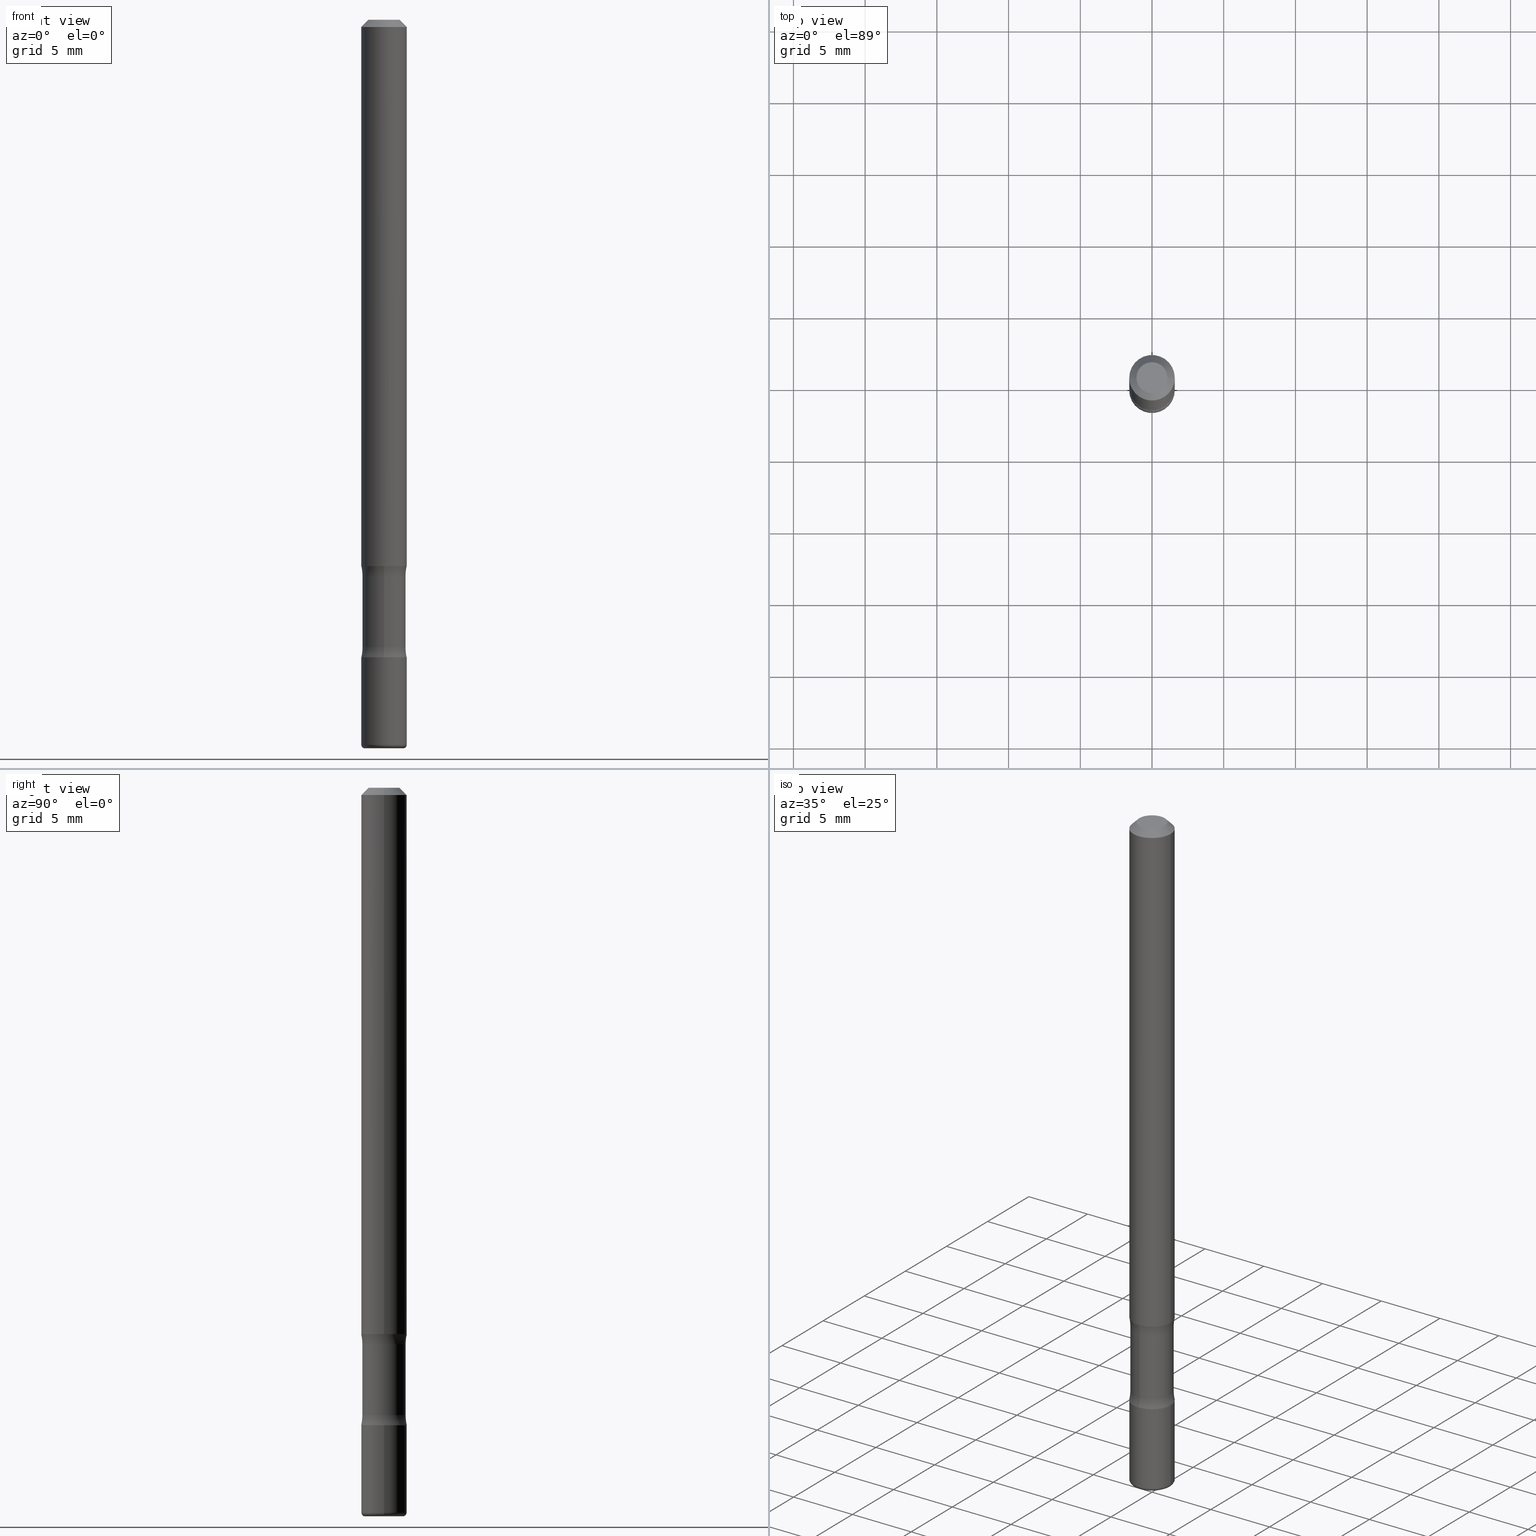
[diagram: canonical four-view strip — front | top / right | iso, engineering-drawing reading convention]
A machine part, canonical four-view strip (front | top / right | iso — engineering-drawing reading convention). The complete STEP part file that produces these views, byte-faithful:
ISO-10303-21;
HEADER;
FILE_DESCRIPTION (( 'STEP AP203' ),
    '1' );
FILE_NAME ('37993.STEP',
    '2024-03-02T02:11:24',
    ( '' ),
    ( '' ),
    'SwSTEP 2.0',
    'SolidWorks 2023',
    '' );
FILE_SCHEMA (( 'CONFIG_CONTROL_DESIGN' ));
ENDSEC;

DATA;
#1 = ORIENTED_EDGE ( 'NONE', *, *, #189, .F. ) ;
#2 = CYLINDRICAL_SURFACE ( 'NONE', #127, 0.05937499999999967110 ) ;
#3 = AXIS2_PLACEMENT_3D ( 'NONE', #549, #487, #408 ) ;
#4 = ORIENTED_EDGE ( 'NONE', *, *, #176, .T. ) ;
#5 = EDGE_CURVE ( 'NONE', #413, #120, #213, .T. ) ;
#6 = FACE_OUTER_BOUND ( 'NONE', #263, .T. ) ;
#7 = DIRECTION ( 'NONE',  ( 1.000000000000000000, -6.982962677686271444E-15, 0.000000000000000000 ) ) ;
#8 = APPROVAL ( #29, 'UNSPECIFIED' ) ;
#9 = VERTEX_POINT ( 'NONE', #488 ) ;
#10 = CARTESIAN_POINT ( 'NONE',  ( 4.364351673554390997E-16, 0.06249999999999455297, -1.749999999999999334 ) ) ;
#11 = ORIENTED_EDGE ( 'NONE', *, *, #108, .F. ) ;
#12 = APPLICATION_PROTOCOL_DEFINITION ( 'international standard', 'config_control_design', 1994, #34 ) ;
#13 = DIRECTION ( 'NONE',  ( 1.000000000000000000, -6.982962677686265922E-15, 4.876176775795935793E-29 ) ) ;
#14 = CARTESIAN_POINT ( 'NONE',  ( 4.866482924308417164E-29, -6.948047864297853205E-15, -1.989999999999998215 ) ) ;
#15 = ORIENTED_EDGE ( 'NONE', *, *, #158, .F. ) ;
#16 = AXIS2_PLACEMENT_3D ( 'NONE', #70, #321, #481 ) ;
#17 = ORIENTED_EDGE ( 'NONE', *, *, #445, .T. ) ;
#18 = DIRECTION ( 'NONE',  ( 6.982962677686266711E-15, 1.000000000000000000, -4.601007147224048087E-15 ) ) ;
#19 = EDGE_CURVE ( 'NONE', #377, #277, #415, .T. ) ;
#20 = PERSON_AND_ORGANIZATION ( #376, #326 ) ;
#21 = ADVANCED_FACE ( 'NONE', ( #350 ), #503, .T. ) ;
#22 = DIRECTION ( 'NONE',  ( 1.000000000000000000, -6.982962677686271444E-15, 4.883557194083114583E-29 ) ) ;
#23 = FACE_OUTER_BOUND ( 'NONE', #405, .T. ) ;
#24 = APPLICATION_PROTOCOL_DEFINITION ( 'international standard', 'config_control_design', 1994, #308 ) ;
#25 = AXIS2_PLACEMENT_3D ( 'NONE', #523, #472, #37 ) ;
#26 = EDGE_CURVE ( 'NONE', #184, #64, #272, .T. ) ;
#27 = CARTESIAN_POINT ( 'NONE',  ( -6.403209434462905426E-29, -2.140844110749520751E-14, -1.749999999999998890 ) ) ;
#28 = CARTESIAN_POINT ( 'NONE',  ( -4.287811248606822657E-16, -0.06250000000000677236, -1.749999999999998890 ) ) ;
#29 = APPROVAL_STATUS ( 'not_yet_approved' ) ;
#30 = ORIENTED_EDGE ( 'NONE', *, *, #218, .F. ) ;
#31 = CARTESIAN_POINT ( 'NONE',  ( 0.05250000000000046296, -7.349568218264821903E-15, -1.999999999999999334 ) ) ;
#32 = ORIENTED_EDGE ( 'NONE', *, *, #328, .T. ) ;
#33 = EDGE_CURVE ( 'NONE', #145, #418, #373, .T. ) ;
#34 = APPLICATION_CONTEXT ( 'configuration controlled 3d designs of mechanical parts and assemblies' ) ;
#35 = CARTESIAN_POINT ( 'NONE',  ( -4.287811248606790116E-16, -0.06250000000000452416, -1.499999999999998446 ) ) ;
#36 = AXIS2_PLACEMENT_3D ( 'NONE', #304, #539, #247 ) ;
#37 = DIRECTION ( 'NONE',  ( -6.982962677686265922E-15, -1.000000000000000000, 0.000000000000000000 ) ) ;
#38 = AXIS2_PLACEMENT_3D ( 'NONE', #461, #96, #152 ) ;
#39 = CYLINDRICAL_SURFACE ( 'NONE', #340, 0.05937499999999967110 ) ;
#40 = CARTESIAN_POINT ( 'NONE',  ( -0.06250000000000062450, -6.084980893786609222E-15, -1.749999999999999112 ) ) ;
#41 = CARTESIAN_POINT ( 'NONE',  ( 4.279570410823987363E-29, -6.110092342975501516E-15, -1.749999999999999112 ) ) ;
#42 = ADVANCED_FACE ( 'NONE', ( #63 ), #469, .F. ) ;
#43 = AXIS2_PLACEMENT_3D ( 'NONE', #496, #168, #485 ) ;
#44 = AXIS2_PLACEMENT_3D ( 'NONE', #347, #150, #219 ) ;
#45 = ORIENTED_EDGE ( 'NONE', *, *, #33, .T. ) ;
#46 = DIMENSIONAL_EXPONENTS ( 1.000000000000000000, 0.000000000000000000, 0.000000000000000000, 0.000000000000000000, 0.000000000000000000, 0.000000000000000000, 0.000000000000000000 ) ;
#47 = EDGE_CURVE ( 'NONE', #183, #258, #248, .T. ) ;
#48 = LINE ( 'NONE', #560, #492 ) ;
#49 = CARTESIAN_POINT ( 'NONE',  ( 4.279570410823987363E-29, -6.110092342975501516E-15, -1.749999999999999112 ) ) ;
#50 = ORIENTED_EDGE ( 'NONE', *, *, #497, .T. ) ;
#51 = ADVANCED_FACE ( 'NONE', ( #429 ), #151, .T. ) ;
#52 = ORIENTED_EDGE ( 'NONE', *, *, #489, .F. ) ;
#53 = CARTESIAN_POINT ( 'NONE',  ( -0.06250000000000056899, 3.666055405785322169E-16, -0.02000000000000013572 ) ) ;
#54 = DIRECTION ( 'NONE',  ( -2.445468806185136597E-29, 3.491481338843145583E-15, 1.000000000000000000 ) ) ;
#55 = VECTOR ( 'NONE', #125, 39.37007874015748143 ) ;
#56 = ORIENTED_EDGE ( 'NONE', *, *, #354, .F. ) ;
#57 = FACE_OUTER_BOUND ( 'NONE', #132, .T. ) ;
#58 = LENGTH_MEASURE_WITH_UNIT ( LENGTH_MEASURE( 0.02539999999999999897 ), #103 );
#59 = EDGE_CURVE ( 'NONE', #470, #258, #424, .T. ) ;
#60 = EDGE_LOOP ( 'NONE', ( #339, #288, #490, #454 ) ) ;
#61 = DIRECTION ( 'NONE',  ( 8.010757980930134339E-30, -5.846345719468729014E-15, -1.000000000000000000 ) ) ;
#62 = CARTESIAN_POINT ( 'NONE',  ( 3.668203209277701532E-29, -5.237222008264713444E-15, -1.499999999999998668 ) ) ;
#63 = FACE_OUTER_BOUND ( 'NONE', #92, .T. ) ;
#64 = VERTEX_POINT ( 'NONE', #10 ) ;
#65 = CARTESIAN_POINT ( 'NONE',  ( 4.259337010429733699E-29, -5.944818127683673811E-15, -1.722224392445884655 ) ) ;
#66 = CARTESIAN_POINT ( 'NONE',  ( 0.000000000000000000, 0.000000000000000000, 0.000000000000000000 ) ) ;
#67 = CIRCLE ( 'NONE', #207, 0.06250000000000090206 ) ;
#68 = COORDINATED_UNIVERSAL_TIME_OFFSET ( 5, 0, .BEHIND. ) ;
#69 = APPROVAL_PERSON_ORGANIZATION ( #114, #516, #252 ) ;
#70 = CARTESIAN_POINT ( 'NONE',  ( 4.890937612370306439E-31, -6.982962677686338448E-17, -0.02000000000000013572 ) ) ;
#71 = DIRECTION ( 'NONE',  ( 1.000000000000000000, 0.000000000000000000, 0.000000000000000000 ) ) ;
#72 = ADVANCED_FACE ( 'NONE', ( #194 ), #76, .F. ) ;
#73 = EDGE_CURVE ( 'NONE', #419, #145, #146, .T. ) ;
#74 = APPROVAL_DATE_TIME ( #171, #8 ) ;
#75 = CC_DESIGN_DATE_AND_TIME_ASSIGNMENT ( #250, #404, ( #113 ) ) ;
#76 = TOROIDAL_SURFACE ( 'NONE', #442, 0.1843749999999994560, 0.1250000000000000000 ) ;
#77 = PERSON_AND_ORGANIZATION_ROLE ( 'design_supplier' ) ;
#78 = CIRCLE ( 'NONE', #36, 0.01000000000000085022 ) ;
#79 = DIRECTION ( 'NONE',  ( 8.010757980930134339E-30, -5.846345719468729014E-15, -1.000000000000000000 ) ) ;
#80 = PERSON_AND_ORGANIZATION ( #376, #326 ) ;
#81 = ORIENTED_EDGE ( 'NONE', *, *, #397, .T. ) ;
#82 = DIRECTION ( 'NONE',  ( 1.000000000000000000, -6.860497997771530774E-15, 4.811960108362550720E-29 ) ) ;
#83 = CYLINDRICAL_SURFACE ( 'NONE', #118, 0.06250000000000073552 ) ;
#84 = CARTESIAN_POINT ( 'NONE',  ( 4.479839360347238409E-29, -7.571678772842681008E-15, -1.999999999999998446 ) ) ;
#85 = AXIS2_PLACEMENT_3D ( 'NONE', #65, #228, #265 ) ;
#86 = DIRECTION ( 'NONE',  ( -1.000000000000000000, 6.982962677686265922E-15, -4.876176775795935793E-29 ) ) ;
#87 = DIRECTION ( 'NONE',  ( 1.000000000000000000, -6.982962677686265922E-15, 4.876176775795935793E-29 ) ) ;
#88 = ORIENTED_EDGE ( 'NONE', *, *, #47, .T. ) ;
#89 = DIRECTION ( 'NONE',  ( 6.982962677686265922E-15, 1.000000000000000000, -5.846345719468729014E-15 ) ) ;
#90 = ORIENTED_EDGE ( 'NONE', *, *, #135, .F. ) ;
#91 = CIRCLE ( 'NONE', #221, 0.06250000000000062450 ) ;
#92 = EDGE_LOOP ( 'NONE', ( #505, #224 ) ) ;
#93 = DIRECTION ( 'NONE',  ( -6.982962677686265922E-15, -1.000000000000000000, 0.000000000000000000 ) ) ;
#94 = ORIENTED_EDGE ( 'NONE', *, *, #397, .F. ) ;
#95 = DIRECTION ( 'NONE',  ( -2.438088387897960049E-29, 3.491481338843145188E-15, 1.000000000000000000 ) ) ;
#96 = DIRECTION ( 'NONE',  ( 8.010757980930137142E-30, -5.846345719468729014E-15, -1.000000000000000000 ) ) ;
#97 = ORIENTED_EDGE ( 'NONE', *, *, #444, .T. ) ;
#98 = DIRECTION ( 'NONE',  ( 1.000000000000000000, -6.982962677686266711E-15, 4.876176775795936353E-29 ) ) ;
#99 = EDGE_CURVE ( 'NONE', #277, #418, #48, .T. ) ;
#100 = CLOSED_SHELL ( 'NONE', ( #303, #293, #254, #21, #51, #275 ) ) ;
#101 = AXIS2_PLACEMENT_3D ( 'NONE', #556, #180, #177 ) ;
#102 = ORIENTED_EDGE ( 'NONE', *, *, #59, .T. ) ;
#103 =( LENGTH_UNIT ( ) NAMED_UNIT ( * ) SI_UNIT ( $, .METRE. ) );
#104 = DIRECTION ( 'NONE',  ( -2.445468806185136597E-29, 3.491481338843145583E-15, 1.000000000000000000 ) ) ;
#105 = ADVANCED_FACE ( 'NONE', ( #165 ), #186, .F. ) ;
#106 = CARTESIAN_POINT ( 'NONE',  ( 4.079301461300732393E-29, -4.648505913108318079E-15, -1.499999999999998668 ) ) ;
#107 = DIRECTION ( 'NONE',  ( 6.982962677686265922E-15, 1.000000000000000000, -5.846345719468729014E-15 ) ) ;
#108 = EDGE_CURVE ( 'NONE', #466, #377, #519, .T. ) ;
#109 = DIRECTION ( 'NONE',  ( 8.010757980930134339E-30, -5.846345719468729014E-15, -1.000000000000000000 ) ) ;
#110 =( CONVERSION_BASED_UNIT ( 'INCH', #58 ) LENGTH_UNIT ( ) NAMED_UNIT ( #46 ) );
#111 = AXIS2_PLACEMENT_3D ( 'NONE', #244, #439, #22 ) ;
#112 = LOCAL_TIME ( 21, 11, 24.00000000000000000, #399 ) ;
#113 = SECURITY_CLASSIFICATION ( '', '', #208 ) ;
#114 = PERSON_AND_ORGANIZATION ( #376, #326 ) ;
#115 = CARTESIAN_POINT ( 'NONE',  ( 0.000000000000000000, 0.000000000000000000, 0.000000000000000000 ) ) ;
#116 = CALENDAR_DATE ( 2024, 1, 3 ) ;
#117 = EDGE_LOOP ( 'NONE', ( #223, #389, #267, #367 ) ) ;
#118 = AXIS2_PLACEMENT_3D ( 'NONE', #493, #299, #87 ) ;
#119 = APPROVAL_STATUS ( 'not_yet_approved' ) ;
#120 = VERTEX_POINT ( 'NONE', #286 ) ;
#121 = AXIS2_PLACEMENT_3D ( 'NONE', #346, #193, #423 ) ;
#122 = FACE_OUTER_BOUND ( 'NONE', #161, .T. ) ;
#123 = DIRECTION ( 'NONE',  ( -2.445468806185136597E-29, 3.491481338843145583E-15, 1.000000000000000000 ) ) ;
#124 = PERSON_AND_ORGANIZATION ( #376, #326 ) ;
#125 = DIRECTION ( 'NONE',  ( -2.445468806185136877E-29, 3.491481338843145188E-15, 1.000000000000000000 ) ) ;
#126 = CIRCLE ( 'NONE', #542, 0.05250000000000046296 ) ;
#127 = AXIS2_PLACEMENT_3D ( 'NONE', #343, #510, #18 ) ;
#128 = DIRECTION ( 'NONE',  ( 1.000000000000000000, -6.982962677686224112E-15, 0.000000000000000000 ) ) ;
#129 = ORIENTED_EDGE ( 'NONE', *, *, #108, .T. ) ;
#130 = ORIENTED_EDGE ( 'NONE', *, *, #175, .F. ) ;
#131 = ORIENTED_EDGE ( 'NONE', *, *, #210, .F. ) ;
#132 = EDGE_LOOP ( 'NONE', ( #4, #360, #362, #533 ) ) ;
#133 = LINE ( 'NONE', #296, #239 ) ;
#134 = MANIFOLD_SOLID_BREP ( 'Body-Move/Copy2[4]', #421 ) ;
#135 = EDGE_CURVE ( 'NONE', #120, #413, #284, .T. ) ;
#136 = AXIS2_PLACEMENT_3D ( 'NONE', #541, #173, #327 ) ;
#137 = CIRCLE ( 'NONE', #121, 0.06250000000000090206 ) ;
#138 = CC_DESIGN_SECURITY_CLASSIFICATION ( #113, ( #402 ) ) ;
#139 = ORIENTED_EDGE ( 'NONE', *, *, #384, .F. ) ;
#140 = CARTESIAN_POINT ( 'NONE',  ( 4.890937612370306439E-31, -6.982962677686338448E-17, -0.02000000000000013572 ) ) ;
#141 = ORIENTED_EDGE ( 'NONE', *, *, #135, .T. ) ;
#142 = DIRECTION ( 'NONE',  ( -0.7071067811865471286, 2.468850131082252722E-15, -0.7071067811865479058 ) ) ;
#143 = FACE_OUTER_BOUND ( 'NONE', #462, .T. ) ;
#144 = MANIFOLD_SOLID_BREP ( 'Body-Move/Copy2[2]', #504 ) ;
#145 = VERTEX_POINT ( 'NONE', #40 ) ;
#146 = LINE ( 'NONE', #256, #220 ) ;
#147 = CARTESIAN_POINT ( 'NONE',  ( -0.05250000000000046296, -6.556943197930007510E-15, -1.999999999999999334 ) ) ;
#148 = AXIS2_PLACEMENT_3D ( 'NONE', #553, #95, #13 ) ;
#149 = AXIS2_PLACEMENT_3D ( 'NONE', #500, #82, #163 ) ;
#150 = DIRECTION ( 'NONE',  ( -2.445468806185136597E-29, 3.491481338843145583E-15, 1.000000000000000000 ) ) ;
#151 = CYLINDRICAL_SURFACE ( 'NONE', #198, 0.06250000000000076328 ) ;
#152 = DIRECTION ( 'NONE',  ( 6.982962677686265922E-15, 1.000000000000000000, -5.846345719468729014E-15 ) ) ;
#153 = DIRECTION ( 'NONE',  ( 6.982962677686267499E-15, 1.000000000000000000, -4.370956789862777762E-15 ) ) ;
#154 = CARTESIAN_POINT ( 'NONE',  ( 0.04250000000000050265, -3.950909582714408367E-16, -5.549066237130292766E-17 ) ) ;
#155 = ADVANCED_FACE ( 'NONE', ( #122 ), #83, .T. ) ;
#156 = EDGE_LOOP ( 'NONE', ( #395, #499 ) ) ;
#157 = DATE_TIME_ROLE ( 'creation_date' ) ;
#158 = EDGE_CURVE ( 'NONE', #413, #258, #257, .T. ) ;
#159 = DIRECTION ( 'NONE',  ( 0.7071067811865471286, -7.319954787623254468E-15, -0.7071067811865479058 ) ) ;
#160 = APPROVAL ( #534, 'UNSPECIFIED' ) ;
#161 = EDGE_LOOP ( 'NONE', ( #483, #227, #558, #379 ) ) ;
#162 = TOROIDAL_SURFACE ( 'NONE', #111, 0.05250000000000046296, 0.01000000000000085022 ) ;
#163 = DIRECTION ( 'NONE',  ( 6.860497997771531562E-15, 1.000000000000000000, 0.000000000000000000 ) ) ;
#164 = CALENDAR_DATE ( 2024, 1, 3 ) ;
#165 = FACE_OUTER_BOUND ( 'NONE', #337, .T. ) ;
#166 = CARTESIAN_POINT ( 'NONE',  ( 4.890937612370306439E-31, -6.982962677686338448E-17, -0.02000000000000013572 ) ) ;
#167 = CALENDAR_DATE ( 2024, 1, 3 ) ;
#168 = DIRECTION ( 'NONE',  ( -2.445468806185136597E-29, 3.491481338843145583E-15, 1.000000000000000000 ) ) ;
#169 = DIRECTION ( 'NONE',  ( -6.982962677686265922E-15, -1.000000000000000000, 5.846345719468729014E-15 ) ) ;
#170 = AXIS2_PLACEMENT_3D ( 'NONE', #532, #522, #128 ) ;
#171 = DATE_AND_TIME ( #116, #447 ) ;
#172 = FACE_OUTER_BOUND ( 'NONE', #459, .T. ) ;
#173 = DIRECTION ( 'NONE',  ( -2.445468806185136597E-29, 3.491481338843145583E-15, 1.000000000000000000 ) ) ;
#174 = DIRECTION ( 'NONE',  ( 8.010757980930134339E-30, -5.846345719468729014E-15, -1.000000000000000000 ) ) ;
#175 = EDGE_CURVE ( 'NONE', #64, #344, #531, .T. ) ;
#176 = EDGE_CURVE ( 'NONE', #377, #466, #126, .T. ) ;
#177 = DIRECTION ( 'NONE',  ( 6.860497997771530774E-15, 1.000000000000000000, 0.000000000000000000 ) ) ;
#178 = VERTEX_POINT ( 'NONE', #214 ) ;
#179 = DIRECTION ( 'NONE',  ( 1.000000000000000000, -6.982962677686261977E-15, 0.000000000000000000 ) ) ;
#180 = DIRECTION ( 'NONE',  ( 1.000000000000000000, -6.860497997771530774E-15, 4.811960108362550720E-29 ) ) ;
#181 = AXIS2_PLACEMENT_3D ( 'NONE', #259, #515, #334 ) ;
#182 = CARTESIAN_POINT ( 'NONE',  ( 4.146134089876643393E-16, 0.05937499999999401590, -1.722224392445885544 ) ) ;
#183 = VERTEX_POINT ( 'NONE', #544 ) ;
#184 = VERTEX_POINT ( 'NONE', #28 ) ;
#185 = CARTESIAN_POINT ( 'NONE',  ( 4.146134089876587187E-16, 0.05937499999999455713, -1.527775607554112458 ) ) ;
#186 = TOROIDAL_SURFACE ( 'NONE', #475, 0.1843749999999999278, 0.1249999999999999584 ) ;
#187 = AXIS2_PLACEMENT_3D ( 'NONE', #115, #206, #486 ) ;
#188 = VECTOR ( 'NONE', #142, 39.37007874015748143 ) ;
#189 = EDGE_CURVE ( 'NONE', #420, #344, #133, .T. ) ;
#190 = EDGE_LOOP ( 'NONE', ( #141, #260 ) ) ;
#191 = DIRECTION ( 'NONE',  ( 8.010757980930134339E-30, -5.846345719468729014E-15, -1.000000000000000000 ) ) ;
#192 = EDGE_LOOP ( 'NONE', ( #311, #129, #301, #131 ) ) ;
#193 = DIRECTION ( 'NONE',  ( -2.445468806185136597E-29, 3.491481338843145583E-15, 1.000000000000000000 ) ) ;
#194 = FACE_OUTER_BOUND ( 'NONE', #117, .T. ) ;
#195 = DIRECTION ( 'NONE',  ( 8.010757980930134339E-30, -5.846345719468729014E-15, -1.000000000000000000 ) ) ;
#196 = EDGE_LOOP ( 'NONE', ( #295, #314, #102, #438 ) ) ;
#197 = CARTESIAN_POINT ( 'NONE',  ( 4.101551828289662394E-29, -4.810891717437951800E-15, -1.527775607554112014 ) ) ;
#198 = AXIS2_PLACEMENT_3D ( 'NONE', #66, #54, #98 ) ;
#199 = CIRCLE ( 'NONE', #484, 0.05937499999999937272 ) ;
#200 =( NAMED_UNIT ( * ) PLANE_ANGLE_UNIT ( ) SI_UNIT ( $, .RADIAN. ) );
#201 = COORDINATED_UNIVERSAL_TIME_OFFSET ( 5, 0, .BEHIND. ) ;
#202 = CYLINDRICAL_SURFACE ( 'NONE', #187, 0.06250000000000076328 ) ;
#203 = EDGE_LOOP ( 'NONE', ( #333, #11 ) ) ;
#204 = PRODUCT ( '37993', '37993', '', ( #529 ) ) ;
#205 = CARTESIAN_POINT ( 'NONE',  ( 4.890937612370272073E-29, -6.982962677686288799E-15, -1.999999999999999334 ) ) ;
#206 = DIRECTION ( 'NONE',  ( -2.445468806185136597E-29, 3.491481338843145583E-15, 1.000000000000000000 ) ) ;
#207 = AXIS2_PLACEMENT_3D ( 'NONE', #14, #498, #451 ) ;
#208 = SECURITY_CLASSIFICATION_LEVEL ( 'unclassified' ) ;
#209 = COORDINATED_UNIVERSAL_TIME_OFFSET ( 5, 0, .BEHIND. ) ;
#210 = EDGE_CURVE ( 'NONE', #419, #277, #520, .T. ) ;
#211 = DIRECTION ( 'NONE',  ( 8.010757980930134339E-30, -5.846345719468729014E-15, -1.000000000000000000 ) ) ;
#212 = CALENDAR_DATE ( 2024, 1, 3 ) ;
#213 = CIRCLE ( 'NONE', #136, 0.04250000000000050265 ) ;
#214 = CARTESIAN_POINT ( 'NONE',  ( -0.06250000000000090206, -2.209436607670712344E-15, -1.499999999999998668 ) ) ;
#215 = CIRCLE ( 'NONE', #410, 0.05937499999999996253 ) ;
#216 = APPROVAL_PERSON_ORGANIZATION ( #80, #160, #243 ) ;
#217 = PLANE ( 'NONE',  #3 ) ;
#218 = EDGE_CURVE ( 'NONE', #420, #271, #369, .T. ) ;
#219 = DIRECTION ( 'NONE',  ( 1.000000000000000000, -6.982962677686265922E-15, 4.876176775795935793E-29 ) ) ;
#220 = VECTOR ( 'NONE', #458, 39.37007874015748143 ) ;
#221 = AXIS2_PLACEMENT_3D ( 'NONE', #49, #291, #414 ) ;
#222 = ORIENTED_EDGE ( 'NONE', *, *, #557, .F. ) ;
#223 = ORIENTED_EDGE ( 'NONE', *, *, #363, .F. ) ;
#224 = ORIENTED_EDGE ( 'NONE', *, *, #431, .F. ) ;
#225 = ADVANCED_FACE ( 'NONE', ( #357 ), #217, .F. ) ;
#226 = ORIENTED_EDGE ( 'NONE', *, *, #175, .T. ) ;
#227 = ORIENTED_EDGE ( 'NONE', *, *, #279, .T. ) ;
#228 = DIRECTION ( 'NONE',  ( 8.010757980930134339E-30, -5.846345719468729014E-15, -1.000000000000000000 ) ) ;
#229 = AXIS2_PLACEMENT_3D ( 'NONE', #298, #457, #93 ) ;
#230 = VERTEX_POINT ( 'NONE', #35 ) ;
#231 = EDGE_CURVE ( 'NONE', #466, #419, #78, .T. ) ;
#232 = DIRECTION ( 'NONE',  ( 6.982962677686266711E-15, 1.000000000000000000, -4.601007147224070964E-15 ) ) ;
#233 = CARTESIAN_POINT ( 'NONE',  ( 0.06250000000000073552, -4.364351673553967477E-16, 3.047610484872495604E-30 ) ) ;
#234 = ORIENTED_EDGE ( 'NONE', *, *, #33, .F. ) ;
#235 = FACE_OUTER_BOUND ( 'NONE', #309, .T. ) ;
#236 = DIRECTION ( 'NONE',  ( -2.445468806185136597E-29, 3.491481338843145583E-15, 1.000000000000000000 ) ) ;
#237 = AXIS2_PLACEMENT_3D ( 'NONE', #268, #507, #266 ) ;
#238 = ADVANCED_FACE ( 'NONE', ( #537 ), #39, .T. ) ;
#239 = VECTOR ( 'NONE', #345, 39.37007874015748143 ) ;
#240 = PERSON_AND_ORGANIZATION_ROLE ( 'creator' ) ;
#241 = FACE_OUTER_BOUND ( 'NONE', #60, .T. ) ;
#242 = FACE_OUTER_BOUND ( 'NONE', #292, .T. ) ;
#243 = APPROVAL_ROLE ( '' ) ;
#244 = CARTESIAN_POINT ( 'NONE',  ( 4.866482924308417164E-29, -6.948047864297853205E-15, -1.989999999999998215 ) ) ;
#245 = EDGE_CURVE ( 'NONE', #418, #145, #91, .T. ) ;
#246 = PERSON_AND_ORGANIZATION_ROLE ( 'creator' ) ;
#247 = DIRECTION ( 'NONE',  ( -1.000000000000000000, 7.105427357601001859E-15, 0.000000000000000000 ) ) ;
#248 = CIRCLE ( 'NONE', #237, 0.06250000000000056899 ) ;
#249 = AXIS2_PLACEMENT_3D ( 'NONE', #62, #426, #463 ) ;
#250 = DATE_AND_TIME ( #164, #112 ) ;
#251 = CC_DESIGN_PERSON_AND_ORGANIZATION_ASSIGNMENT ( #20, #278, ( #113 ) ) ;
#252 = APPROVAL_ROLE ( '' ) ;
#253 = FACE_OUTER_BOUND ( 'NONE', #156, .T. ) ;
#254 = ADVANCED_FACE ( 'NONE', ( #338 ), #502, .T. ) ;
#255 = CIRCLE ( 'NONE', #101, 0.1250000000000000000 ) ;
#256 = CARTESIAN_POINT ( 'NONE',  ( -0.06250000000000076328, 4.440892098500680396E-16, -3.074334431409353598E-30 ) ) ;
#257 = LINE ( 'NONE', #512, #351 ) ;
#258 = VERTEX_POINT ( 'NONE', #316 ) ;
#259 = CARTESIAN_POINT ( 'NONE',  ( 4.866482924308417164E-29, -6.948047864297853205E-15, -1.989999999999998215 ) ) ;
#260 = ORIENTED_EDGE ( 'NONE', *, *, #5, .T. ) ;
#261 = CIRCLE ( 'NONE', #325, 0.06249999999999997224 ) ;
#262 = VERTEX_POINT ( 'NONE', #474 ) ;
#263 = EDGE_LOOP ( 'NONE', ( #94, #52, #226, #32 ) ) ;
#264 = ORIENTED_EDGE ( 'NONE', *, *, #328, .F. ) ;
#265 = DIRECTION ( 'NONE',  ( 6.982962677686265922E-15, 1.000000000000000000, -5.846345719468729014E-15 ) ) ;
#266 = DIRECTION ( 'NONE',  ( 1.000000000000000000, -6.982962677686265922E-15, 0.000000000000000000 ) ) ;
#267 = ORIENTED_EDGE ( 'NONE', *, *, #218, .T. ) ;
#268 = CARTESIAN_POINT ( 'NONE',  ( 4.890937612370306439E-31, -6.982962677686338448E-17, -0.02000000000000013572 ) ) ;
#269 = CIRCLE ( 'NONE', #455, 0.06250000000000056899 ) ;
#270 = ORIENTED_EDGE ( 'NONE', *, *, #210, .T. ) ;
#271 = VERTEX_POINT ( 'NONE', #477 ) ;
#272 = CIRCLE ( 'NONE', #409, 0.06250000000000062450 ) ;
#273 = AXIS2_PLACEMENT_3D ( 'NONE', #365, #355, #394 ) ;
#274 = CC_DESIGN_APPROVAL ( #516, ( #113 ) ) ;
#275 = ADVANCED_FACE ( 'NONE', ( #23 ), #319, .F. ) ;
#276 = ADVANCED_BREP_SHAPE_REPRESENTATION ( '37993', ( #494, #144, #134, #332 ), #555 ) ;
#277 = VERTEX_POINT ( 'NONE', #411 ) ;
#278 = PERSON_AND_ORGANIZATION_ROLE ( 'classification_officer' ) ;
#279 = EDGE_CURVE ( 'NONE', #178, #183, #526, .T. ) ;
#280 = PERSON_AND_ORGANIZATION ( #376, #326 ) ;
#281 = DIRECTION ( 'NONE',  ( 2.445468806185136597E-29, -3.491481338843145583E-15, -1.000000000000000000 ) ) ;
#282 = CARTESIAN_POINT ( 'NONE',  ( -0.06250000000000073552, 4.440892098500678424E-16, -3.074334431409351847E-30 ) ) ;
#283 = PRODUCT_RELATED_PRODUCT_CATEGORY ( 'detail', '', ( #204 ) ) ;
#284 = CIRCLE ( 'NONE', #43, 0.04250000000000050265 ) ;
#285 = AXIS2_PLACEMENT_3D ( 'NONE', #106, #195, #392 ) ;
#286 = CARTESIAN_POINT ( 'NONE',  ( -0.04250000000000050265, 3.316907271901009129E-16, -5.549066237130754373E-17 ) ) ;
#287 = LOCAL_TIME ( 21, 11, 24.00000000000000000, #482 ) ;
#288 = ORIENTED_EDGE ( 'NONE', *, *, #73, .T. ) ;
#289 = ADVANCED_FACE ( 'NONE', ( #242 ), #358, .F. ) ;
#290 = APPROVAL_PERSON_ORGANIZATION ( #366, #8, #540 ) ;
#291 = DIRECTION ( 'NONE',  ( -2.445468806185136597E-29, 3.491481338843145583E-15, 1.000000000000000000 ) ) ;
#292 = EDGE_LOOP ( 'NONE', ( #56, #330, #513, #30 ) ) ;
#293 = ADVANCED_FACE ( 'NONE', ( #57 ), #162, .T. ) ;
#294 = EDGE_LOOP ( 'NONE', ( #385, #270, #435, #234 ) ) ;
#295 = ORIENTED_EDGE ( 'NONE', *, *, #279, .F. ) ;
#296 = CARTESIAN_POINT ( 'NONE',  ( 4.146134089876645858E-16, 0.05937499999999210076, -1.999999999999998668 ) ) ;
#297 = CONICAL_SURFACE ( 'NONE', #401, 0.06250000000000056899, 0.7853981633974477239 ) ;
#298 = CARTESIAN_POINT ( 'NONE',  ( 1.287483743698442698E-15, 0.1843749999999946820, -1.527775607554112680 ) ) ;
#299 = DIRECTION ( 'NONE',  ( -2.445468806185136597E-29, 3.491481338843145583E-15, 1.000000000000000000 ) ) ;
#300 = ADVANCED_FACE ( 'NONE', ( #172 ), #297, .T. ) ;
#301 = ORIENTED_EDGE ( 'NONE', *, *, #19, .T. ) ;
#302 = DIRECTION ( 'NONE',  ( 8.010757980930134339E-30, -5.846345719468729014E-15, -1.000000000000000000 ) ) ;
#303 = ADVANCED_FACE ( 'NONE', ( #241 ), #202, .T. ) ;
#304 = CARTESIAN_POINT ( 'NONE',  ( -0.05250000000000046296, -6.575012928023797515E-15, -1.989999999999998215 ) ) ;
#305 = ORIENTED_EDGE ( 'NONE', *, *, #444, .F. ) ;
#306 = DIRECTION ( 'NONE',  ( 8.010757980930134339E-30, -5.846345719468729014E-15, -1.000000000000000000 ) ) ;
#307 = CARTESIAN_POINT ( 'NONE',  ( 4.279570410823986242E-29, -6.110092342975502304E-15, -1.749999999999999112 ) ) ;
#308 = APPLICATION_CONTEXT ( 'configuration controlled 3d designs of mechanical parts and assemblies' ) ;
#309 = EDGE_LOOP ( 'NONE', ( #222, #452, #509, #305 ) ) ;
#310 = CIRCLE ( 'NONE', #476, 0.05937499999999937272 ) ;
#311 = ORIENTED_EDGE ( 'NONE', *, *, #231, .F. ) ;
#312 = CARTESIAN_POINT ( 'NONE',  ( 0.06250000000000090206, -5.673657175620112213E-15, -1.499999999999998668 ) ) ;
#313 = CARTESIAN_POINT ( 'NONE',  ( 4.079301461300732393E-29, -4.648505913108318079E-15, -1.499999999999998668 ) ) ;
#314 = ORIENTED_EDGE ( 'NONE', *, *, #431, .T. ) ;
#315 = AXIS2_PLACEMENT_3D ( 'NONE', #403, #123, #406 ) ;
#316 = CARTESIAN_POINT ( 'NONE',  ( 0.06250000000000056899, -4.986107516375879651E-16, -0.02000000000000013572 ) ) ;
#317 = CIRCLE ( 'NONE', #285, 0.06249999999999997224 ) ;
#318 = CC_DESIGN_APPROVAL ( #160, ( #402 ) ) ;
#319 = PLANE ( 'NONE',  #331 ) ;
#320 = ADVANCED_FACE ( 'NONE', ( #527 ), #524, .F. ) ;
#321 = DIRECTION ( 'NONE',  ( 2.445468806185136597E-29, -3.491481338843145583E-15, -1.000000000000000000 ) ) ;
#322 = CARTESIAN_POINT ( 'NONE',  ( 4.117655442741518235E-29, -4.787830424982076550E-15, -1.527775607554111570 ) ) ;
#323 = DATE_AND_TIME ( #437, #506 ) ;
#324 = ADVANCED_FACE ( 'NONE', ( #143 ), #352, .T. ) ;
#325 = AXIS2_PLACEMENT_3D ( 'NONE', #313, #109, #471 ) ;
#326 = ORGANIZATION ( 'UNSPECIFIED', 'UNSPECIFIED', '' ) ;
#327 = DIRECTION ( 'NONE',  ( 1.000000000000000000, -6.982962677686266711E-15, 4.870577812114026993E-29 ) ) ;
#328 = EDGE_CURVE ( 'NONE', #344, #9, #215, .T. ) ;
#329 = DIRECTION ( 'NONE',  ( 6.982962677686266711E-15, 1.000000000000000000, -4.601007147224048087E-15 ) ) ;
#330 = ORIENTED_EDGE ( 'NONE', *, *, #363, .T. ) ;
#331 = AXIS2_PLACEMENT_3D ( 'NONE', #27, #535, #86 ) ;
#332 = AXIS2_PLACEMENT_3D ( 'NONE', #387, #468, #71 ) ;
#333 = ORIENTED_EDGE ( 'NONE', *, *, #176, .F. ) ;
#334 = DIRECTION ( 'NONE',  ( 1.000000000000000000, -6.982962677686270655E-15, 0.000000000000000000 ) ) ;
#335 = CC_DESIGN_DATE_AND_TIME_ASSIGNMENT ( #478, #157, ( #372 ) ) ;
#336 = EDGE_LOOP ( 'NONE', ( #450, #139 ) ) ;
#337 = EDGE_LOOP ( 'NONE', ( #342, #81, #97, #130 ) ) ;
#338 = FACE_OUTER_BOUND ( 'NONE', #203, .T. ) ;
#339 = ORIENTED_EDGE ( 'NONE', *, *, #391, .T. ) ;
#340 = AXIS2_PLACEMENT_3D ( 'NONE', #84, #371, #329 ) ;
#341 = DIRECTION ( 'NONE',  ( 6.982962677686265133E-15, 1.000000000000000000, -4.601007147224025211E-15 ) ) ;
#342 = ORIENTED_EDGE ( 'NONE', *, *, #26, .F. ) ;
#343 = CARTESIAN_POINT ( 'NONE',  ( 4.479839360347238409E-29, -7.571678772842681008E-15, -1.999999999999998446 ) ) ;
#344 = VERTEX_POINT ( 'NONE', #182 ) ;
#345 = DIRECTION ( 'NONE',  ( 8.010757980930134339E-30, -5.846345719468729014E-15, -1.000000000000000000 ) ) ;
#346 = CARTESIAN_POINT ( 'NONE',  ( 3.668203209277701532E-29, -5.237222008264713444E-15, -1.499999999999998668 ) ) ;
#347 = CARTESIAN_POINT ( 'NONE',  ( 0.000000000000000000, 0.000000000000000000, 0.000000000000000000 ) ) ;
#348 = ORIENTED_EDGE ( 'NONE', *, *, #5, .F. ) ;
#349 = DIRECTION ( 'NONE',  ( 1.000000000000000000, -6.982962677686265922E-15, 0.000000000000000000 ) ) ;
#350 = FACE_OUTER_BOUND ( 'NONE', #192, .T. ) ;
#351 = VECTOR ( 'NONE', #159, 39.37007874015748143 ) ;
#352 = CONICAL_SURFACE ( 'NONE', #16, 0.06250000000000056899, 0.7853981633974477239 ) ;
#353 = CARTESIAN_POINT ( 'NONE',  ( 4.279570410823986242E-29, -6.110092342975502304E-15, -1.749999999999999112 ) ) ;
#354 = EDGE_CURVE ( 'NONE', #262, #420, #310, .T. ) ;
#355 = DIRECTION ( 'NONE',  ( 2.438088387897960049E-29, -3.491481338843145188E-15, -1.000000000000000000 ) ) ;
#356 = ADVANCED_FACE ( 'NONE', ( #480 ), #380, .T. ) ;
#357 = FACE_OUTER_BOUND ( 'NONE', #190, .T. ) ;
#358 = TOROIDAL_SURFACE ( 'NONE', #374, 0.1843749999999994560, 0.1250000000000000000 ) ;
#359 = CC_DESIGN_APPROVAL ( #8, ( #372 ) ) ;
#360 = ORIENTED_EDGE ( 'NONE', *, *, #231, .T. ) ;
#361 = APPROVAL_DATE_TIME ( #323, #160 ) ;
#362 = ORIENTED_EDGE ( 'NONE', *, *, #391, .F. ) ;
#363 = EDGE_CURVE ( 'NONE', #262, #230, #255, .T. ) ;
#364 = SHAPE_DEFINITION_REPRESENTATION ( #491, #276 ) ;
#365 = CARTESIAN_POINT ( 'NONE',  ( -2.417785108228764368E-28, -4.861112258114085426E-14, -1.999999999999998890 ) ) ;
#366 = PERSON_AND_ORGANIZATION ( #376, #326 ) ;
#367 = ORIENTED_EDGE ( 'NONE', *, *, #511, .T. ) ;
#368 = CARTESIAN_POINT ( 'NONE',  ( -6.403209434462905426E-29, -2.140844110749520751E-14, -1.749999999999998890 ) ) ;
#369 = CIRCLE ( 'NONE', #229, 0.1250000000000000000 ) ;
#370 = LOCAL_TIME ( 21, 11, 24.00000000000000000, #201 ) ;
#371 = DIRECTION ( 'NONE',  ( 8.010757980930134339E-30, -5.846345719468729014E-15, -1.000000000000000000 ) ) ;
#372 = PRODUCT_DEFINITION ( 'UNKNOWN', '', #402, #538 ) ;
#373 = CIRCLE ( 'NONE', #453, 0.06250000000000062450 ) ;
#374 = AXIS2_PLACEMENT_3D ( 'NONE', #386, #61, #107 ) ;
#375 = CARTESIAN_POINT ( 'NONE',  ( 4.101551828289662394E-29, -4.810891717437951800E-15, -1.527775607554112014 ) ) ;
#376 = PERSON ( 'UNSPECIFIED', 'UNSPECIFIED', 'UNSPECIFIED', ('UNSPECIFIED'), ('UNSPECIFIED'), ('UNSPECIFIED') ) ;
#377 = VERTEX_POINT ( 'NONE', #31 ) ;
#378 = ADVANCED_FACE ( 'NONE', ( #253 ), #443, .F. ) ;
#379 = ORIENTED_EDGE ( 'NONE', *, *, #59, .F. ) ;
#380 = CYLINDRICAL_SURFACE ( 'NONE', #44, 0.06250000000000073552 ) ;
#381 = DIRECTION ( 'NONE',  ( 8.010757980930134339E-30, -5.846345719468729014E-15, -1.000000000000000000 ) ) ;
#382 = EDGE_LOOP ( 'NONE', ( #50, #430, #264, #1 ) ) ;
#383 = CIRCLE ( 'NONE', #495, 0.05937499999999996253 ) ;
#384 = EDGE_CURVE ( 'NONE', #230, #271, #317, .T. ) ;
#385 = ORIENTED_EDGE ( 'NONE', *, *, #73, .F. ) ;
#386 = CARTESIAN_POINT ( 'NONE',  ( 4.117655442741518235E-29, -4.787830424982076550E-15, -1.527775607554111570 ) ) ;
#387 = CARTESIAN_POINT ( 'NONE',  ( 0.000000000000000000, 0.000000000000000000, 0.000000000000000000 ) ) ;
#388 = DIRECTION ( 'NONE',  ( -2.445468806185136877E-29, 3.491481338843145188E-15, 1.000000000000000000 ) ) ;
#389 = ORIENTED_EDGE ( 'NONE', *, *, #497, .F. ) ;
#390 = CARTESIAN_POINT ( 'NONE',  ( 4.257320043835055680E-29, -5.947706538645865427E-15, -1.722224392445885321 ) ) ;
#391 = EDGE_CURVE ( 'NONE', #277, #419, #67, .T. ) ;
#392 = DIRECTION ( 'NONE',  ( 6.982962677686265922E-15, 1.000000000000000000, -4.370956789862822727E-15 ) ) ;
#393 = DIRECTION ( 'NONE',  ( -2.445468806185136597E-29, 3.491481338843145583E-15, 1.000000000000000000 ) ) ;
#394 = DIRECTION ( 'NONE',  ( -1.000000000000000000, 6.982962677686265922E-15, -4.876176775795935793E-29 ) ) ;
#395 = ORIENTED_EDGE ( 'NONE', *, *, #489, .T. ) ;
#396 = PERSON_AND_ORGANIZATION ( #376, #326 ) ;
#397 = EDGE_CURVE ( 'NONE', #184, #9, #446, .T. ) ;
#398 = DATE_AND_TIME ( #212, #370 ) ;
#399 = COORDINATED_UNIVERSAL_TIME_OFFSET ( 5, 0, .BEHIND. ) ;
#400 = AXIS2_PLACEMENT_3D ( 'NONE', #449, #104, #460 ) ;
#401 = AXIS2_PLACEMENT_3D ( 'NONE', #166, #281, #436 ) ;
#402 = PRODUCT_DEFINITION_FORMATION_WITH_SPECIFIED_SOURCE ( 'ANY', '', #204, .NOT_KNOWN. ) ;
#403 = CARTESIAN_POINT ( 'NONE',  ( 4.890937612370272073E-29, -6.982962677686288799E-15, -1.999999999999999334 ) ) ;
#404 = DATE_TIME_ROLE ( 'classification_date' ) ;
#405 = EDGE_LOOP ( 'NONE', ( #425, #45 ) ) ;
#406 = DIRECTION ( 'NONE',  ( 1.000000000000000000, -6.982962677686261977E-15, 0.000000000000000000 ) ) ;
#407 = APPROVAL_DATE_TIME ( #398, #516 ) ;
#408 = DIRECTION ( 'NONE',  ( -1.000000000000000000, 6.982962677686265922E-15, -4.876176775795935793E-29 ) ) ;
#409 = AXIS2_PLACEMENT_3D ( 'NONE', #307, #464, #412 ) ;
#410 = AXIS2_PLACEMENT_3D ( 'NONE', #546, #174, #551 ) ;
#411 = CARTESIAN_POINT ( 'NONE',  ( 0.06250000000000111022, -7.384483031653253552E-15, -1.989999999999998215 ) ) ;
#412 = DIRECTION ( 'NONE',  ( 6.982962677686267499E-15, 1.000000000000000000, -4.370956789862777762E-15 ) ) ;
#413 = VERTEX_POINT ( 'NONE', #154 ) ;
#414 = DIRECTION ( 'NONE',  ( 1.000000000000000000, -6.982962677686271444E-15, 0.000000000000000000 ) ) ;
#415 = CIRCLE ( 'NONE', #170, 0.01000000000000085022 ) ;
#416 = ORIENTED_EDGE ( 'NONE', *, *, #545, .F. ) ;
#417 = AXIS2_PLACEMENT_3D ( 'NONE', #353, #381, #153 ) ;
#418 = VERTEX_POINT ( 'NONE', #456 ) ;
#419 = VERTEX_POINT ( 'NONE', #525 ) ;
#420 = VERTEX_POINT ( 'NONE', #185 ) ;
#421 = CLOSED_SHELL ( 'NONE', ( #238, #105, #289, #72, #320, #378, #434, #536 ) ) ;
#422 = AXIS2_PLACEMENT_3D ( 'NONE', #368, #479, #169 ) ;
#423 = DIRECTION ( 'NONE',  ( 1.000000000000000000, -6.982962677686270655E-15, 0.000000000000000000 ) ) ;
#424 = LINE ( 'NONE', #233, #552 ) ;
#425 = ORIENTED_EDGE ( 'NONE', *, *, #245, .T. ) ;
#426 = DIRECTION ( 'NONE',  ( -2.445468806185136597E-29, 3.491481338843145583E-15, 1.000000000000000000 ) ) ;
#427 = CC_DESIGN_PERSON_AND_ORGANIZATION_ASSIGNMENT ( #396, #77, ( #402 ) ) ;
#428 =( NAMED_UNIT ( * ) SI_UNIT ( $, .STERADIAN. ) SOLID_ANGLE_UNIT ( ) );
#429 = FACE_OUTER_BOUND ( 'NONE', #294, .T. ) ;
#430 = ORIENTED_EDGE ( 'NONE', *, *, #557, .T. ) ;
#431 = EDGE_CURVE ( 'NONE', #178, #470, #137, .T. ) ;
#432 = PERSON_AND_ORGANIZATION_ROLE ( 'design_owner' ) ;
#433 = TOROIDAL_SURFACE ( 'NONE', #85, 0.1843749999999999278, 0.1249999999999999584 ) ;
#434 = ADVANCED_FACE ( 'NONE', ( #6 ), #433, .F. ) ;
#435 = ORIENTED_EDGE ( 'NONE', *, *, #99, .T. ) ;
#436 = DIRECTION ( 'NONE',  ( -1.000000000000000000, 6.982962677686265922E-15, 0.000000000000000000 ) ) ;
#437 = CALENDAR_DATE ( 2024, 1, 3 ) ;
#438 = ORIENTED_EDGE ( 'NONE', *, *, #47, .F. ) ;
#439 = DIRECTION ( 'NONE',  ( -2.445468806185136597E-29, 3.491481338843145583E-15, 1.000000000000000000 ) ) ;
#440 = UNCERTAINTY_MEASURE_WITH_UNIT (LENGTH_MEASURE( 1.000000000000000082E-05 ), #110, 'distance_accuracy_value', 'NONE');
#441 = PERSON_AND_ORGANIZATION ( #376, #326 ) ;
#442 = AXIS2_PLACEMENT_3D ( 'NONE', #322, #79, #89 ) ;
#443 = PLANE ( 'NONE',  #422 ) ;
#444 = EDGE_CURVE ( 'NONE', #9, #344, #383, .T. ) ;
#445 = EDGE_CURVE ( 'NONE', #258, #183, #269, .T. ) ;
#446 = CIRCLE ( 'NONE', #149, 0.1249999999999999584 ) ;
#447 = LOCAL_TIME ( 21, 11, 24.00000000000000000, #209 ) ;
#448 = CC_DESIGN_PERSON_AND_ORGANIZATION_ASSIGNMENT ( #441, #240, ( #402 ) ) ;
#449 = CARTESIAN_POINT ( 'NONE',  ( 4.866482924308417164E-29, -6.948047864297853205E-15, -1.989999999999998215 ) ) ;
#450 = ORIENTED_EDGE ( 'NONE', *, *, #511, .F. ) ;
#451 = DIRECTION ( 'NONE',  ( 1.000000000000000000, -6.982962677686270655E-15, 0.000000000000000000 ) ) ;
#452 = ORIENTED_EDGE ( 'NONE', *, *, #354, .T. ) ;
#453 = AXIS2_PLACEMENT_3D ( 'NONE', #41, #393, #7 ) ;
#454 = ORIENTED_EDGE ( 'NONE', *, *, #99, .F. ) ;
#455 = AXIS2_PLACEMENT_3D ( 'NONE', #140, #236, #349 ) ;
#456 = CARTESIAN_POINT ( 'NONE',  ( 0.06250000000000062450, -6.546527510330897918E-15, -1.749999999999999112 ) ) ;
#457 = DIRECTION ( 'NONE',  ( -1.000000000000000000, 6.982962677686265922E-15, -4.883557194083113462E-29 ) ) ;
#458 = DIRECTION ( 'NONE',  ( -2.445468806185136877E-29, 3.491481338843145188E-15, 1.000000000000000000 ) ) ;
#459 = EDGE_LOOP ( 'NONE', ( #15, #90, #514, #88 ) ) ;
#460 = DIRECTION ( 'NONE',  ( 1.000000000000000000, -6.982962677686271444E-15, 4.883557194083114583E-29 ) ) ;
#461 = CARTESIAN_POINT ( 'NONE',  ( 3.668203209277701532E-29, -5.237222008264713444E-15, -1.499999999999998668 ) ) ;
#462 = EDGE_LOOP ( 'NONE', ( #348, #501, #17, #416 ) ) ;
#463 = DIRECTION ( 'NONE',  ( 1.000000000000000000, -6.982962677686270655E-15, 0.000000000000000000 ) ) ;
#464 = DIRECTION ( 'NONE',  ( 8.010757980930134339E-30, -5.846345719468729014E-15, -1.000000000000000000 ) ) ;
#465 = EDGE_CURVE ( 'NONE', #470, #178, #467, .T. ) ;
#466 = VERTEX_POINT ( 'NONE', #147 ) ;
#467 = CIRCLE ( 'NONE', #249, 0.06250000000000090206 ) ;
#468 = DIRECTION ( 'NONE',  ( 0.000000000000000000, 0.000000000000000000, 1.000000000000000000 ) ) ;
#469 = PLANE ( 'NONE',  #148 ) ;
#470 = VERTEX_POINT ( 'NONE', #312 ) ;
#471 = DIRECTION ( 'NONE',  ( 6.982962677686265922E-15, 1.000000000000000000, -4.370956789862822727E-15 ) ) ;
#472 = DIRECTION ( 'NONE',  ( -1.000000000000000000, 6.982962677686265922E-15, -4.883557194083113462E-29 ) ) ;
#473 = CARTESIAN_POINT ( 'NONE',  ( -4.073420686176375718E-16, -0.05937500000000724837, -1.999999999999998002 ) ) ;
#474 = CARTESIAN_POINT ( 'NONE',  ( -4.180615967391589820E-16, -0.05937500000000418832, -1.527775607554111792 ) ) ;
#475 = AXIS2_PLACEMENT_3D ( 'NONE', #528, #211, #530 ) ;
#476 = AXIS2_PLACEMENT_3D ( 'NONE', #375, #559, #550 ) ;
#477 = CARTESIAN_POINT ( 'NONE',  ( 4.364351673554319013E-16, 0.06249999999999526074, -1.499999999999999112 ) ) ;
#478 = DATE_AND_TIME ( #167, #287 ) ;
#479 = DIRECTION ( 'NONE',  ( -8.010757980930137142E-30, 5.846345719468729014E-15, 1.000000000000000000 ) ) ;
#480 = FACE_OUTER_BOUND ( 'NONE', #196, .T. ) ;
#481 = DIRECTION ( 'NONE',  ( -1.000000000000000000, 6.982962677686265922E-15, 0.000000000000000000 ) ) ;
#482 = COORDINATED_UNIVERSAL_TIME_OFFSET ( 5, 0, .BEHIND. ) ;
#483 = ORIENTED_EDGE ( 'NONE', *, *, #465, .T. ) ;
#484 = AXIS2_PLACEMENT_3D ( 'NONE', #197, #191, #232 ) ;
#485 = DIRECTION ( 'NONE',  ( 1.000000000000000000, -6.982962677686266711E-15, 4.870577812114026993E-29 ) ) ;
#486 = DIRECTION ( 'NONE',  ( 1.000000000000000000, -6.982962677686266711E-15, 4.876176775795936353E-29 ) ) ;
#487 = DIRECTION ( 'NONE',  ( 2.438088387897960049E-29, -3.491481338843145188E-15, -1.000000000000000000 ) ) ;
#488 = CARTESIAN_POINT ( 'NONE',  ( -4.180615967391622360E-16, -0.05937500000000592304, -1.722224392445884877 ) ) ;
#489 = EDGE_CURVE ( 'NONE', #64, #184, #554, .T. ) ;
#490 = ORIENTED_EDGE ( 'NONE', *, *, #245, .F. ) ;
#491 = PRODUCT_DEFINITION_SHAPE ( 'NONE', 'NONE',  #372 ) ;
#492 = VECTOR ( 'NONE', #518, 39.37007874015748143 ) ;
#493 = CARTESIAN_POINT ( 'NONE',  ( 0.000000000000000000, 0.000000000000000000, 0.000000000000000000 ) ) ;
#494 = MANIFOLD_SOLID_BREP ( 'Body-Move/Copy2[1]', #100 ) ;
#495 = AXIS2_PLACEMENT_3D ( 'NONE', #390, #306, #341 ) ;
#496 = CARTESIAN_POINT ( 'NONE',  ( 1.357006838635785746E-45, -1.937446121494581442E-31, -5.549066237130534971E-17 ) ) ;
#497 = EDGE_CURVE ( 'NONE', #420, #262, #199, .T. ) ;
#498 = DIRECTION ( 'NONE',  ( -2.445468806185136597E-29, 3.491481338843145583E-15, 1.000000000000000000 ) ) ;
#499 = ORIENTED_EDGE ( 'NONE', *, *, #26, .T. ) ;
#500 = CARTESIAN_POINT ( 'NONE',  ( -1.264904318339082863E-15, -0.1843750000000058675, -1.722224392445883545 ) ) ;
#501 = ORIENTED_EDGE ( 'NONE', *, *, #158, .T. ) ;
#502 = PLANE ( 'NONE',  #273 ) ;
#503 = TOROIDAL_SURFACE ( 'NONE', #400, 0.05250000000000046296, 0.01000000000000085022 ) ;
#504 = CLOSED_SHELL ( 'NONE', ( #155, #324, #300, #225, #42, #356 ) ) ;
#505 = ORIENTED_EDGE ( 'NONE', *, *, #465, .F. ) ;
#506 = LOCAL_TIME ( 21, 11, 24.00000000000000000, #68 ) ;
#507 = DIRECTION ( 'NONE',  ( -2.445468806185136597E-29, 3.491481338843145583E-15, 1.000000000000000000 ) ) ;
#508 = CC_DESIGN_PERSON_AND_ORGANIZATION_ASSIGNMENT ( #124, #432, ( #204 ) ) ;
#509 = ORIENTED_EDGE ( 'NONE', *, *, #189, .T. ) ;
#510 = DIRECTION ( 'NONE',  ( 8.010757980930134339E-30, -5.846345719468729014E-15, -1.000000000000000000 ) ) ;
#511 = EDGE_CURVE ( 'NONE', #271, #230, #261, .T. ) ;
#512 = CARTESIAN_POINT ( 'NONE',  ( 0.06250000000000056899, -4.986107516375879651E-16, -0.02000000000000013572 ) ) ;
#513 = ORIENTED_EDGE ( 'NONE', *, *, #384, .T. ) ;
#514 = ORIENTED_EDGE ( 'NONE', *, *, #545, .T. ) ;
#515 = DIRECTION ( 'NONE',  ( -2.445468806185136597E-29, 3.491481338843145583E-15, 1.000000000000000000 ) ) ;
#516 = APPROVAL ( #119, 'UNSPECIFIED' ) ;
#517 = LINE ( 'NONE', #473, #543 ) ;
#518 = DIRECTION ( 'NONE',  ( -2.445468806185136877E-29, 3.491481338843145188E-15, 1.000000000000000000 ) ) ;
#519 = CIRCLE ( 'NONE', #315, 0.05250000000000046296 ) ;
#520 = CIRCLE ( 'NONE', #181, 0.06250000000000090206 ) ;
#521 = LINE ( 'NONE', #53, #188 ) ;
#522 = DIRECTION ( 'NONE',  ( -6.982962677686266711E-15, -1.000000000000000000, 3.491481338843145583E-15 ) ) ;
#523 = CARTESIAN_POINT ( 'NONE',  ( 1.287483743698447629E-15, 0.1843749999999939881, -1.722224392445885766 ) ) ;
#524 = PLANE ( 'NONE',  #38 ) ;
#525 = CARTESIAN_POINT ( 'NONE',  ( -0.06250000000000111022, -6.503958654447783489E-15, -1.989999999999998215 ) ) ;
#526 = LINE ( 'NONE', #282, #55 ) ;
#527 = FACE_OUTER_BOUND ( 'NONE', #336, .T. ) ;
#528 = CARTESIAN_POINT ( 'NONE',  ( 4.259337010429733699E-29, -5.944818127683673811E-15, -1.722224392445884655 ) ) ;
#529 = MECHANICAL_CONTEXT ( 'NONE', #34, 'mechanical' ) ;
#530 = DIRECTION ( 'NONE',  ( 6.982962677686265922E-15, 1.000000000000000000, -5.846345719468729014E-15 ) ) ;
#531 = CIRCLE ( 'NONE', #25, 0.1249999999999999584 ) ;
#532 = CARTESIAN_POINT ( 'NONE',  ( 0.05250000000000046296, -7.314653404876385521E-15, -1.989999999999998215 ) ) ;
#533 = ORIENTED_EDGE ( 'NONE', *, *, #19, .F. ) ;
#534 = APPROVAL_STATUS ( 'not_yet_approved' ) ;
#535 = DIRECTION ( 'NONE',  ( 2.438088387897960049E-29, -3.491481338843145188E-15, -1.000000000000000000 ) ) ;
#536 = ADVANCED_FACE ( 'NONE', ( #235 ), #2, .T. ) ;
#537 = FACE_OUTER_BOUND ( 'NONE', #382, .T. ) ;
#538 = DESIGN_CONTEXT ( 'detailed design', #308, 'design' ) ;
#539 = DIRECTION ( 'NONE',  ( 7.105427357601001859E-15, 1.000000000000000000, -3.491481338843145583E-15 ) ) ;
#540 = APPROVAL_ROLE ( '' ) ;
#541 = CARTESIAN_POINT ( 'NONE',  ( 1.357006838635785746E-45, -1.937446121494581442E-31, -5.549066237130534971E-17 ) ) ;
#542 = AXIS2_PLACEMENT_3D ( 'NONE', #205, #547, #179 ) ;
#543 = VECTOR ( 'NONE', #302, 39.37007874015748143 ) ;
#544 = CARTESIAN_POINT ( 'NONE',  ( -0.06250000000000056899, 3.666055405785322169E-16, -0.02000000000000013572 ) ) ;
#545 = EDGE_CURVE ( 'NONE', #120, #183, #521, .T. ) ;
#546 = CARTESIAN_POINT ( 'NONE',  ( 4.257320043835055680E-29, -5.947706538645865427E-15, -1.722224392445885321 ) ) ;
#547 = DIRECTION ( 'NONE',  ( -2.445468806185136597E-29, 3.491481338843145583E-15, 1.000000000000000000 ) ) ;
#548 = CC_DESIGN_PERSON_AND_ORGANIZATION_ASSIGNMENT ( #280, #246, ( #372 ) ) ;
#549 = CARTESIAN_POINT ( 'NONE',  ( 2.967759138016698062E-16, 0.04250000000000050265, -1.761332880864881203E-16 ) ) ;
#550 = DIRECTION ( 'NONE',  ( 6.982962677686266711E-15, 1.000000000000000000, -4.601007147224070964E-15 ) ) ;
#551 = DIRECTION ( 'NONE',  ( 6.982962677686265133E-15, 1.000000000000000000, -4.601007147224025211E-15 ) ) ;
#552 = VECTOR ( 'NONE', #388, 39.37007874015748143 ) ;
#553 = CARTESIAN_POINT ( 'NONE',  ( 3.668203209277701532E-29, -5.237222008264713444E-15, -1.499999999999998668 ) ) ;
#554 = CIRCLE ( 'NONE', #417, 0.06250000000000062450 ) ;
#555 =( GEOMETRIC_REPRESENTATION_CONTEXT ( 3 ) GLOBAL_UNCERTAINTY_ASSIGNED_CONTEXT ( ( #440 ) ) GLOBAL_UNIT_ASSIGNED_CONTEXT ( ( #110, #200, #428 ) ) REPRESENTATION_CONTEXT ( 'NONE', 'WORKASPACE' ) );
#556 = CARTESIAN_POINT ( 'NONE',  ( -1.264904318339080891E-15, -0.1843750000000042299, -1.527775607554110460 ) ) ;
#557 = EDGE_CURVE ( 'NONE', #262, #9, #517, .T. ) ;
#558 = ORIENTED_EDGE ( 'NONE', *, *, #445, .F. ) ;
#559 = DIRECTION ( 'NONE',  ( 8.010757980930134339E-30, -5.846345719468729014E-15, -1.000000000000000000 ) ) ;
#560 = CARTESIAN_POINT ( 'NONE',  ( 0.06250000000000076328, -4.364351673553969942E-16, 3.047610484872497355E-30 ) ) ;
ENDSEC;
END-ISO-10303-21;
